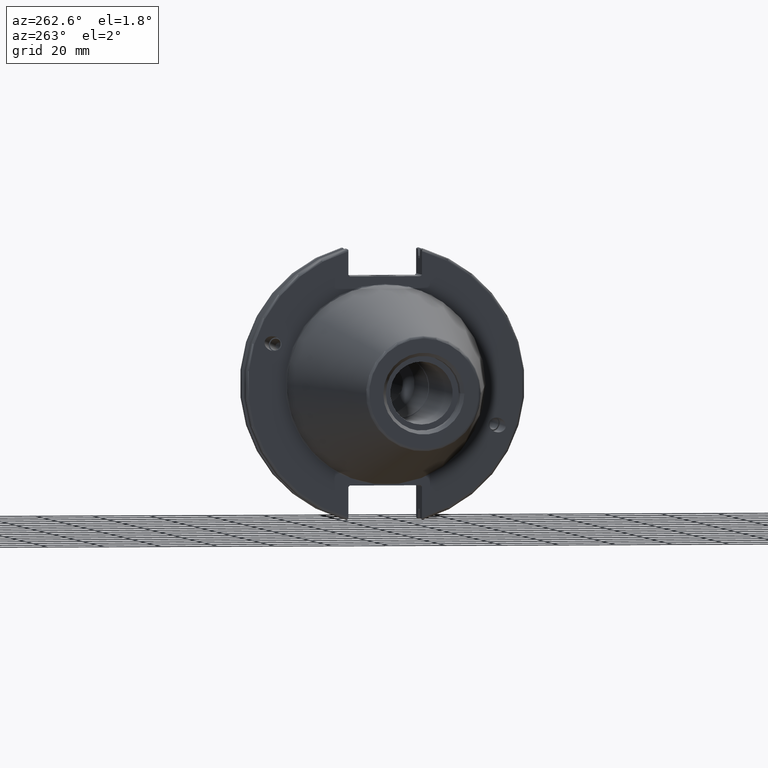
[diagram: clean part render]
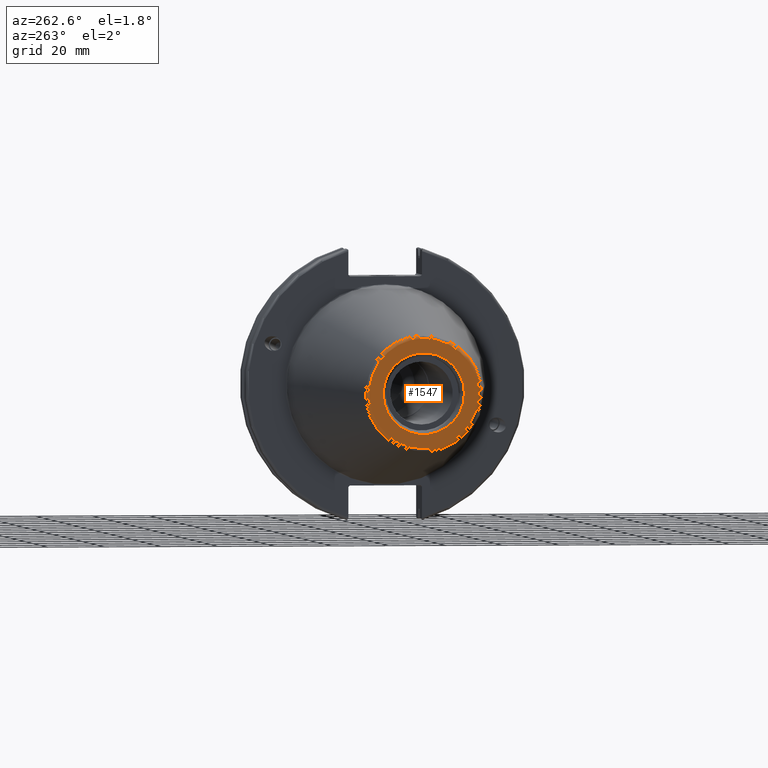
[diagram: same view with one face highlighted and labeled with its STEP entity id]
A machine part, auxiliary view. The second image highlights one B-rep face of the part: STEP entity #1547.
In plain terms, the highlighted planar face has unit normal (-1, 0, 0).
Its self-contained STEP definition (entity closure, byte-faithful):
#52=PLANE('',#1724);
#97=FACE_BOUND('',#355,.T.);
#164=CIRCLE('',#1723,19.2435889303637);
#165=CIRCLE('',#1725,14.2875);
#249=FACE_OUTER_BOUND('',#354,.T.);
#354=EDGE_LOOP('',(#1330));
#355=EDGE_LOOP('',(#1331));
#760=VERTEX_POINT('',#3140);
#761=VERTEX_POINT('',#3144);
#968=EDGE_CURVE('',#760,#760,#164,.T.);
#969=EDGE_CURVE('',#761,#761,#165,.T.);
#1330=ORIENTED_EDGE('',*,*,#968,.F.);
#1331=ORIENTED_EDGE('',*,*,#969,.T.);
#1547=ADVANCED_FACE('',(#249,#97),#52,.T.);
#1723=AXIS2_PLACEMENT_3D('',#3142,#2091,#2092);
#1724=AXIS2_PLACEMENT_3D('',#3143,#2093,#2094);
#1725=AXIS2_PLACEMENT_3D('',#3145,#2095,#2096);
#2091=DIRECTION('center_axis',(1.,0.,0.));
#2092=DIRECTION('ref_axis',(0.,-1.,1.83697019872103E-16));
#2093=DIRECTION('center_axis',(-1.,0.,0.));
#2094=DIRECTION('ref_axis',(0.,0.,1.));
#2095=DIRECTION('center_axis',(1.,0.,0.));
#2096=DIRECTION('ref_axis',(0.,0.,-1.));
#3140=CARTESIAN_POINT('',(-101.6,-2.35665995876774E-15,19.2435889303637));
#3142=CARTESIAN_POINT('Origin',(-101.6,0.,0.));
#3143=CARTESIAN_POINT('Origin',(-101.6,20.1083333333333,0.));
#3144=CARTESIAN_POINT('',(-101.6,-14.2875,-1.74971411428178E-15));
#3145=CARTESIAN_POINT('Origin',(-101.6,0.,0.));